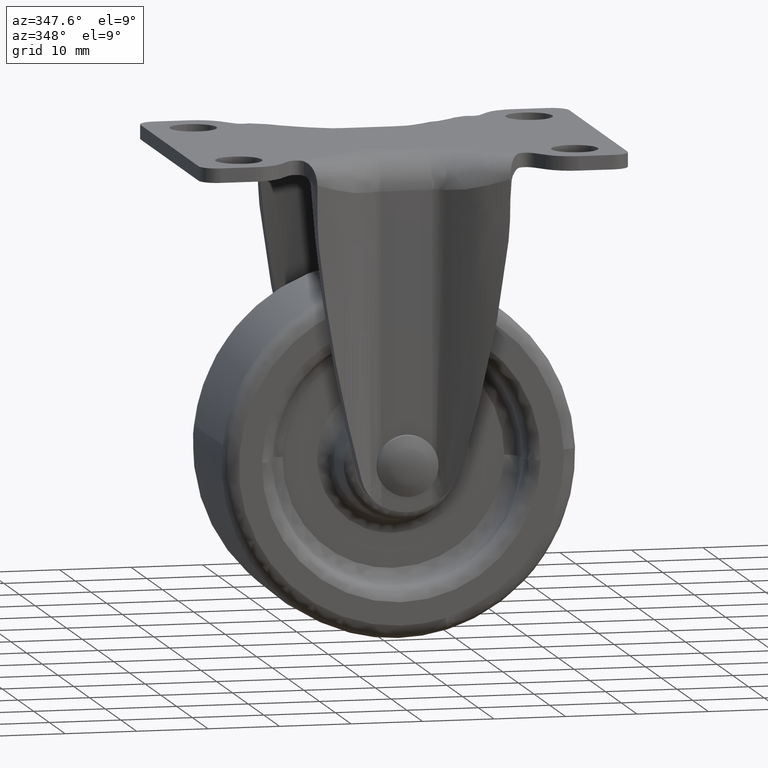
[diagram: clean part render]
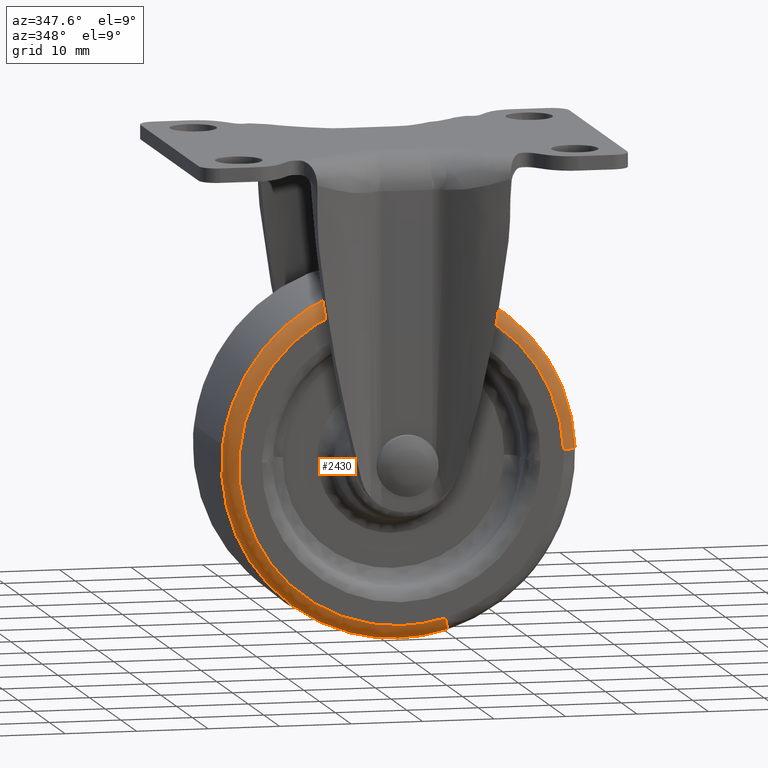
[diagram: same view with one face highlighted and labeled with its STEP entity id]
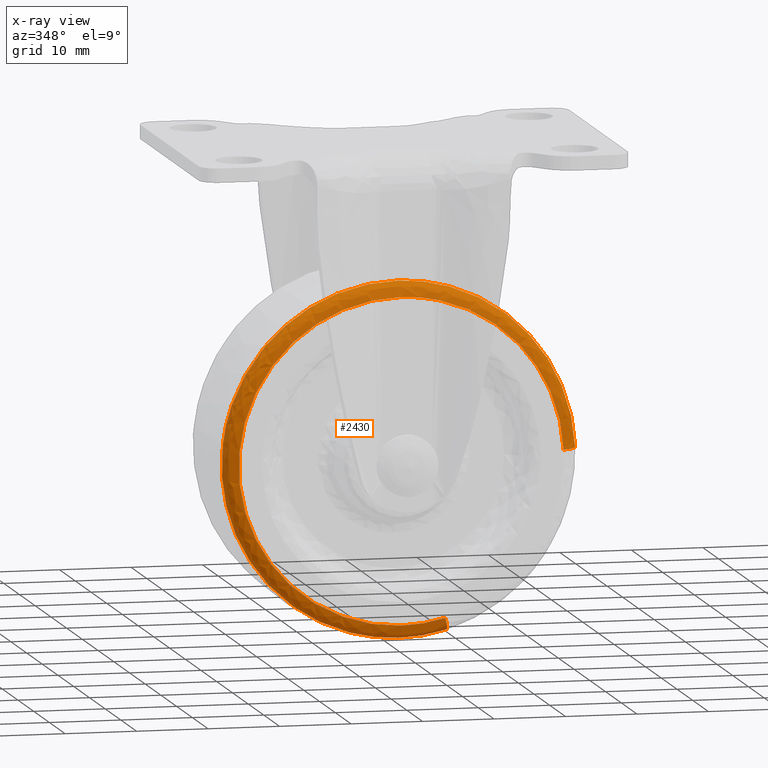
[diagram: x-ray of the same camera — body ghosted, the highlighted face saturated]
A machine part, auxiliary view. The second image highlights one B-rep face of the part: STEP entity #2430.
The next image is the same camera in x-ray: the body ghosted, the highlighted face saturated — about 0% of this face is hidden behind the body in this view.
In plain terms, the highlighted face is a freeform B-spline surface patch.
Its self-contained STEP definition (entity closure, byte-faithful):
#2219=CARTESIAN_POINT('',(6.149171373335523,-11.0,-64.878373273519856));
#2220=VERTEX_POINT('',#2219);
#2221=CARTESIAN_POINT('',(22.709950386511078,-11.0,-42.143449218535693));
#2222=VERTEX_POINT('',#2221);
#2238=CARTESIAN_POINT('',(6.689324917442004,-9.121621713731903,-66.800206337786008));
#2239=VERTEX_POINT('',#2238);
#2240=CARTESIAN_POINT('',(6.689324917442005,-9.121621713731905,-66.800206337786008));
#2241=CARTESIAN_POINT('',(6.658360678101492,-10.999999998728390,-66.690037480074878));
#2242=CARTESIAN_POINT('',(6.149171373335522,-11.0,-64.878373273519856));
#2250=(BOUNDED_CURVE()B_SPLINE_CURVE(2,(#2240,#2241,#2242),.UNSPECIFIED.,.F.,.U.)B_SPLINE_CURVE_WITH_KNOTS((3,3),(-1.716736975411618,-0.272108063188372),.UNSPECIFIED.)CURVE()GEOMETRIC_REPRESENTATION_ITEM()RATIONAL_B_SPLINE_CURVE((0.817532430473685,0.596650698475638,0.820970131162965))REPRESENTATION_ITEM(''));
#2251=EDGE_CURVE('',#2239,#2220,#2250,.T.);
#2253=CARTESIAN_POINT('',(24.704830497591310,-9.121624188660775,-42.068208362229058));
#2254=VERTEX_POINT('',#2253);
#2270=CARTESIAN_POINT('',(24.704830497591310,-9.121624188660773,-42.068208362229058));
#2271=CARTESIAN_POINT('',(24.590471971055091,-10.999999993556957,-42.072521620707285));
#2272=CARTESIAN_POINT('',(22.709950386511075,-11.0,-42.143449218535693));
#2280=(BOUNDED_CURVE()B_SPLINE_CURVE(2,(#2270,#2271,#2272),.UNSPECIFIED.,.F.,.U.)B_SPLINE_CURVE_WITH_KNOTS((3,3),(-1.716735673605049,-0.272108066091059),.UNSPECIFIED.)CURVE()GEOMETRIC_REPRESENTATION_ITEM()RATIONAL_B_SPLINE_CURVE((0.887396489299263,0.647639351077899,0.891128399321629))REPRESENTATION_ITEM(''));
#2281=EDGE_CURVE('',#2254,#2222,#2280,.T.);
#2286=CARTESIAN_POINT('',(24.708482923741499,-8.986371046510385,-42.068070603774167));
#2287=CARTESIAN_POINT('',(23.776553527515656,-8.986371046510385,-17.359587680032664));
#2288=CARTESIAN_POINT('',(-0.931929396225835,-8.986371046510385,-18.291517076258511));
#2289=CARTESIAN_POINT('',(-25.640412319967318,-8.986371046510385,-19.223446472484341));
#2290=CARTESIAN_POINT('',(-24.708482923741499,-8.986371046510385,-43.931929396225833));
#2291=CARTESIAN_POINT('',(-23.776553527515656,-8.986371046510385,-68.640412319967339));
#2292=CARTESIAN_POINT('',(0.931929396225837,-8.986371046510385,-67.708482923741499));
#2293=CARTESIAN_POINT('',(3.864818879319781,-8.986371046510383,-67.597863185022092));
#2294=CARTESIAN_POINT('',(6.690313862654302,-8.986371046510385,-66.803724944040823));
#2295=CARTESIAN_POINT('',(24.723151973266937,-11.140481979303017,-42.067517331502877));
#2296=CARTESIAN_POINT('',(23.790669304769793,-11.140481979303017,-17.344365358235933));
#2297=CARTESIAN_POINT('',(-0.932482668497129,-11.140481979303017,-18.276848026733063));
#2298=CARTESIAN_POINT('',(-25.655634641764060,-11.140481979303017,-19.209330695230186));
#2299=CARTESIAN_POINT('',(-24.723151973266937,-11.140481979303017,-43.932482668497123));
#2300=CARTESIAN_POINT('',(-23.790669304769793,-11.140481979303017,-68.655634641764053));
#2301=CARTESIAN_POINT('',(0.932482668497132,-11.140481979303017,-67.723151973266937));
#2302=CARTESIAN_POINT('',(3.867113363352759,-11.140481979303019,-67.612466561295548));
#2303=CARTESIAN_POINT('',(6.694285799972144,-11.140481979303017,-66.817856852550605));
#2304=CARTESIAN_POINT('',(22.575405065705727,-10.995462804855975,-42.148523862133935));
#2305=CARTESIAN_POINT('',(21.723928927839665,-10.995462804855979,-19.573118796428219));
#2306=CARTESIAN_POINT('',(-0.851476137866056,-10.995462804855975,-20.424594934294277));
#2307=CARTESIAN_POINT('',(-23.426881203571774,-10.995462804855979,-21.276071072160327));
#2308=CARTESIAN_POINT('',(-22.575405065705727,-10.995462804855975,-43.851476137866058));
#2309=CARTESIAN_POINT('',(-21.723928927839665,-10.995462804855979,-66.426881203571767));
#2310=CARTESIAN_POINT('',(0.851476137866058,-10.995462804855975,-65.575405065705709));
#2311=CARTESIAN_POINT('',(3.531169921500752,-10.995462804855979,-65.474335104528393));
#2312=CARTESIAN_POINT('',(6.112740548753059,-10.995462804855981,-64.748754641994481));
#2320=(BOUNDED_SURFACE()B_SPLINE_SURFACE(2,2,((#2286,#2295,#2304),(#2287,#2296,#2305),(#2288,#2297,#2306),(#2289,#2298,#2307),(#2290,#2299,#2308),(#2291,#2300,#2309),(#2292,#2301,#2310),(#2293,#2302,#2311),(#2294,#2303,#2312)),.UNSPECIFIED.,.F.,.F.,.U.)B_SPLINE_SURFACE_WITH_KNOTS((3,2,2,2,3),(3,3),(0.0,40.967463434326767,81.934926868653534,122.902390302980290,129.457184452472600),(0.0,3.488897792230049),.UNSPECIFIED.)GEOMETRIC_REPRESENTATION_ITEM()RATIONAL_B_SPLINE_SURFACE(((0.912554437220154,0.622294876202326,0.916659404388914),(0.645273430760244,0.440028926860308,0.648176080881823),(0.912554437220154,0.622294876202326,0.916659404388914),(0.645273430760244,0.440028926860308,0.648176080881823),(0.912554437220154,0.622294876202326,0.916659404388914),(0.645273430760244,0.440028926860308,0.648176080881823),(0.912554437220154,0.622294876202326,0.916659404388914),(0.869789476186568,0.593132324307603,0.873702072627780),(0.840709302683730,0.573301789019191,0.844491087030208)))REPRESENTATION_ITEM('')SURFACE());
#2321=CARTESIAN_POINT('',(0.0,-11.0,-65.726097897426300));
#2322=VERTEX_POINT('',#2321);
#2323=CARTESIAN_POINT('',(0.0,-11.0,-65.726097897426300));
#2324=CARTESIAN_POINT('',(3.133019335241821,-11.000000000000004,-65.726097897426300));
#2325=CARTESIAN_POINT('',(6.149171373335523,-10.999999999999995,-64.878373273519856));
#2333=(BOUNDED_CURVE()B_SPLINE_CURVE(2,(#2323,#2324,#2325),.UNSPECIFIED.,.F.,.U.)B_SPLINE_CURVE_WITH_KNOTS((3,3),(0.0,0.046107938914809),.UNSPECIFIED.)CURVE()GEOMETRIC_REPRESENTATION_ITEM()RATIONAL_B_SPLINE_CURVE((1.0,0.945981189433550,0.911887947009888))REPRESENTATION_ITEM(''));
#2334=EDGE_CURVE('',#2322,#2220,#2333,.T.);
#2335=ORIENTED_EDGE('',*,*,#2334,.F.);
#2336=CARTESIAN_POINT('',(0.0,-11.0,-20.273902102573700));
#2337=VERTEX_POINT('',#2336);
#2338=CARTESIAN_POINT('',(0.0,-11.0,-20.273902102573700));
#2339=CARTESIAN_POINT('',(-22.726097897426303,-11.0,-20.273902102573704));
#2340=CARTESIAN_POINT('',(-22.726097897426300,-11.0,-43.0));
#2341=CARTESIAN_POINT('',(-22.726097897426303,-11.0,-65.726097897426300));
#2342=CARTESIAN_POINT('',(0.0,-11.0,-65.726097897426300));
#2350=(BOUNDED_CURVE()B_SPLINE_CURVE(2,(#2338,#2339,#2340,#2341,#2342),.UNSPECIFIED.,.F.,.U.)B_SPLINE_CURVE_WITH_KNOTS((3,2,3),(0.500000000000000,0.750000000000000,1.0),.UNSPECIFIED.)CURVE()GEOMETRIC_REPRESENTATION_ITEM()RATIONAL_B_SPLINE_CURVE((1.0,0.707106781186548,1.0,0.707106781186548,1.0))REPRESENTATION_ITEM(''));
#2351=EDGE_CURVE('',#2337,#2322,#2350,.T.);
#2352=ORIENTED_EDGE('',*,*,#2351,.F.);
#2353=CARTESIAN_POINT('',(22.709950386511078,-10.999999999999998,-42.143449218535693));
#2354=CARTESIAN_POINT('',(21.885097076135533,-11.000000000000002,-20.273902102573693));
#2355=CARTESIAN_POINT('',(0.0,-11.0,-20.273902102573700));
#2363=(BOUNDED_CURVE()B_SPLINE_CURVE(2,(#2353,#2354,#2355),.UNSPECIFIED.,.F.,.U.)B_SPLINE_CURVE_WITH_KNOTS((3,3),(0.256613471420501,0.500000000000000),.UNSPECIFIED.)CURVE()GEOMETRIC_REPRESENTATION_ITEM()RATIONAL_B_SPLINE_CURVE((0.984913610619937,0.714854944914072,1.0))REPRESENTATION_ITEM(''));
#2364=EDGE_CURVE('',#2222,#2337,#2363,.T.);
#2365=ORIENTED_EDGE('',*,*,#2364,.F.);
#2366=ORIENTED_EDGE('',*,*,#2281,.F.);
#2367=CARTESIAN_POINT('',(0.0,-9.121626578029773,-18.277603784300371));
#2368=VERTEX_POINT('',#2367);
#2369=CARTESIAN_POINT('',(24.704830497591306,-9.121624188660775,-42.068208362229058));
#2370=CARTESIAN_POINT('',(23.807520620799281,-9.121626578029773,-18.277603784300371));
#2371=CARTESIAN_POINT('',(0.0,-9.121626578029773,-18.277603784300371));
#2379=(BOUNDED_CURVE()B_SPLINE_CURVE(2,(#2369,#2370,#2371),.UNSPECIFIED.,.F.,.U.)B_SPLINE_CURVE_WITH_KNOTS((3,3),(0.256613472520419,0.500000000000000),.UNSPECIFIED.)CURVE()GEOMETRIC_REPRESENTATION_ITEM()RATIONAL_B_SPLINE_CURVE((0.984913608179026,0.714854946202707,1.0))REPRESENTATION_ITEM(''));
#2380=EDGE_CURVE('',#2254,#2368,#2379,.T.);
#2381=ORIENTED_EDGE('',*,*,#2380,.T.);
#2382=CARTESIAN_POINT('',(-24.557048597239341,-9.121634293194809,-40.145492057110388));
#2383=VERTEX_POINT('',#2382);
#2384=CARTESIAN_POINT('',(0.0,-9.121626578029773,-18.277603784300371));
#2385=CARTESIAN_POINT('',(-22.015128638365425,-9.121630435612291,-18.277603677890024));
#2386=CARTESIAN_POINT('',(-24.557048597239337,-9.121634293194809,-40.145492057110381));
#2394=(BOUNDED_CURVE()B_SPLINE_CURVE(2,(#2384,#2385,#2386),.UNSPECIFIED.,.F.,.U.)B_SPLINE_CURVE_WITH_KNOTS((3,3),(0.500000000000000,0.730000306038309),.UNSPECIFIED.)CURVE()GEOMETRIC_REPRESENTATION_ITEM()RATIONAL_B_SPLINE_CURVE((1.0,0.730537880145442,0.956886720549122))REPRESENTATION_ITEM(''));
#2395=EDGE_CURVE('',#2368,#2383,#2394,.T.);
#2396=ORIENTED_EDGE('',*,*,#2395,.T.);
#2397=CARTESIAN_POINT('',(0.0,-9.121621621621589,-67.722396517661792));
#2398=VERTEX_POINT('',#2397);
#2399=CARTESIAN_POINT('',(-24.557048597239337,-9.121634293194809,-40.145492057110381));
#2400=CARTESIAN_POINT('',(-24.722395770564820,-9.121633966383811,-41.567957210385920));
#2401=CARTESIAN_POINT('',(-24.722395792775419,-9.121633599383870,-43.000000084260677));
#2402=CARTESIAN_POINT('',(-24.722396176213106,-9.121627263597260,-67.722396557351729));
#2403=CARTESIAN_POINT('',(0.0,-9.121621621621589,-67.722396517661792));
#2411=(BOUNDED_CURVE()B_SPLINE_CURVE(2,(#2399,#2400,#2401,#2402,#2403),.UNSPECIFIED.,.F.,.U.)B_SPLINE_CURVE_WITH_KNOTS((3,2,3),(0.730000306038309,0.750000000000000,1.0),.UNSPECIFIED.)CURVE()GEOMETRIC_REPRESENTATION_ITEM()RATIONAL_B_SPLINE_CURVE((0.956886720549122,0.976568901041105,1.0,0.707106781186548,1.0))REPRESENTATION_ITEM(''));
#2412=EDGE_CURVE('',#2383,#2398,#2411,.T.);
#2413=ORIENTED_EDGE('',*,*,#2412,.T.);
#2414=CARTESIAN_POINT('',(0.0,-9.121621621621589,-67.722396517661792));
#2415=CARTESIAN_POINT('',(3.408229018041169,-9.121621621621589,-67.722396517661792));
#2416=CARTESIAN_POINT('',(6.689324917442004,-9.121621713731903,-66.800206337786008));
#2424=(BOUNDED_CURVE()B_SPLINE_CURVE(2,(#2414,#2415,#2416),.UNSPECIFIED.,.F.,.U.)B_SPLINE_CURVE_WITH_KNOTS((3,3),(0.0,0.046107938924666),.UNSPECIFIED.)CURVE()GEOMETRIC_REPRESENTATION_ITEM()RATIONAL_B_SPLINE_CURVE((1.0,0.945981189422002,0.911887946995312))REPRESENTATION_ITEM(''));
#2425=EDGE_CURVE('',#2398,#2239,#2424,.T.);
#2426=ORIENTED_EDGE('',*,*,#2425,.T.);
#2427=ORIENTED_EDGE('',*,*,#2251,.T.);
#2428=EDGE_LOOP('',(#2335,#2352,#2365,#2366,#2381,#2396,#2413,#2426,#2427));
#2429=FACE_OUTER_BOUND('',#2428,.T.);
#2430=ADVANCED_FACE('',(#2429),#2320,.T.);